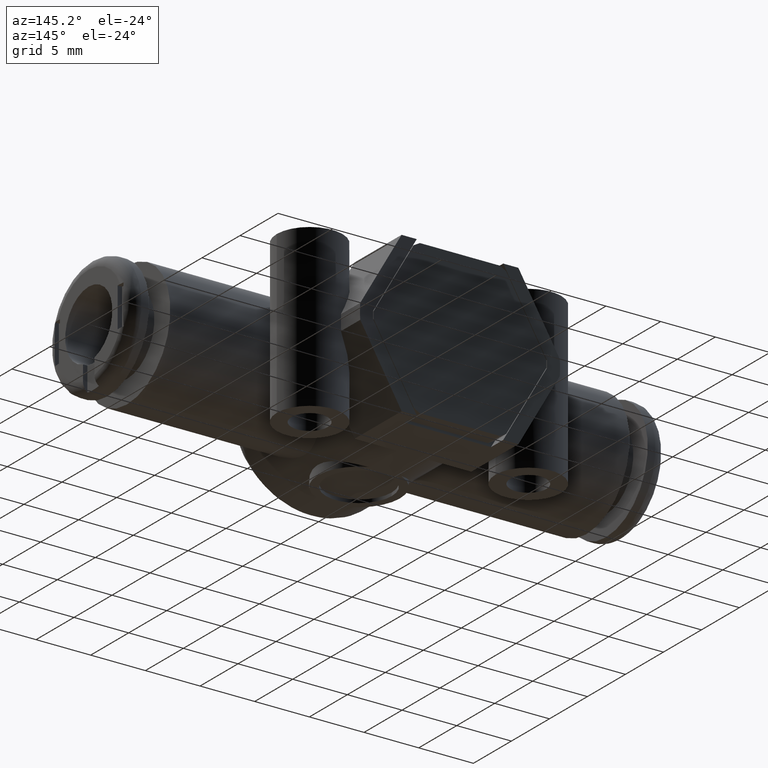
[diagram: clean part render]
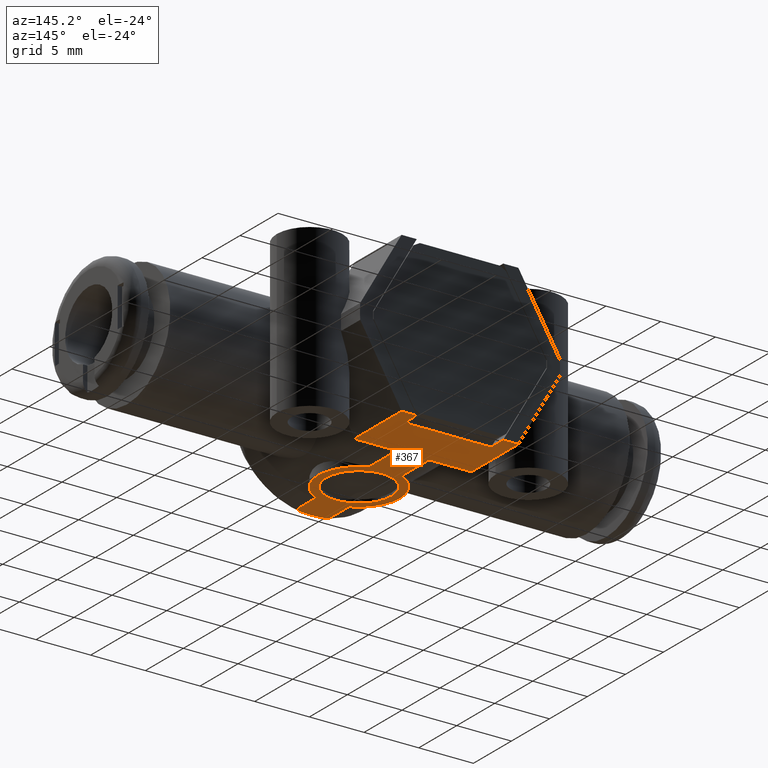
[diagram: same view with one face highlighted and labeled with its STEP entity id]
A machine part, auxiliary view. The second image highlights one B-rep face of the part: STEP entity #367.
In plain terms, the highlighted planar face has unit normal (0, 0, 1).
Its self-contained STEP definition (entity closure, byte-faithful):
#367 = ADVANCED_FACE( '', ( #762, #763 ), #764, .F. );
#762 = FACE_OUTER_BOUND( '', #1188, .T. );
#763 = FACE_BOUND( '', #1189, .T. );
#764 = PLANE( '', #1190 );
#1188 = EDGE_LOOP( '', ( #1958, #1959, #1960, #1961, #1962, #1963, #1964, #1965, #1966, #1967, #1968, #1969, #1970, #1971, #1972, #1973 ) );
#1189 = EDGE_LOOP( '', ( #1974 ) );
#1190 = AXIS2_PLACEMENT_3D( '', #1975, #1976, #1977 );
#1958 = ORIENTED_EDGE( '', *, *, #2459, .F. );
#1959 = ORIENTED_EDGE( '', *, *, #2588, .T. );
#1960 = ORIENTED_EDGE( '', *, *, #2336, .F. );
#1961 = ORIENTED_EDGE( '', *, *, #2444, .T. );
#1962 = ORIENTED_EDGE( '', *, *, #2589, .F. );
#1963 = ORIENTED_EDGE( '', *, *, #2366, .T. );
#1964 = ORIENTED_EDGE( '', *, *, #2420, .T. );
#1965 = ORIENTED_EDGE( '', *, *, #2526, .F. );
#1966 = ORIENTED_EDGE( '', *, *, #2590, .F. );
#1967 = ORIENTED_EDGE( '', *, *, #2524, .F. );
#1968 = ORIENTED_EDGE( '', *, *, #2591, .T. );
#1969 = ORIENTED_EDGE( '', *, *, #2592, .F. );
#1970 = ORIENTED_EDGE( '', *, *, #2475, .F. );
#1971 = ORIENTED_EDGE( '', *, *, #2593, .F. );
#1972 = ORIENTED_EDGE( '', *, *, #2594, .T. );
#1973 = ORIENTED_EDGE( '', *, *, #2595, .F. );
#1974 = ORIENTED_EDGE( '', *, *, #2510, .F. );
#1975 = CARTESIAN_POINT( '', ( 10.0000000000000, 10.0000000000000, -7.25000000000000 ) );
#1976 = DIRECTION( '', ( 0.000000000000000, -0.000000000000000, 1.00000000000000 ) );
#1977 = DIRECTION( '', ( 1.00000000000000, 0.000000000000000, -0.000000000000000 ) );
#2336 = EDGE_CURVE( '', #2734, #2736, #2737, .T. );
#2366 = EDGE_CURVE( '', #2789, #2787, #2790, .T. );
#2420 = EDGE_CURVE( '', #2787, #2873, #2875, .T. );
#2444 = EDGE_CURVE( '', #2734, #2909, #2911, .T. );
#2459 = EDGE_CURVE( '', #2929, #2931, #2932, .T. );
#2475 = EDGE_CURVE( '', #2956, #2957, #2959, .T. );
#2510 = EDGE_CURVE( '', #3012, #3012, #3013, .T. );
#2524 = EDGE_CURVE( '', #3031, #3033, #3034, .F. );
#2526 = EDGE_CURVE( '', #3035, #2873, #3037, .F. );
#2588 = EDGE_CURVE( '', #2929, #2736, #3124, .T. );
#2589 = EDGE_CURVE( '', #2789, #2909, #3125, .T. );
#2590 = EDGE_CURVE( '', #3033, #3035, #3126, .T. );
#2591 = EDGE_CURVE( '', #3031, #3127, #3128, .T. );
#2592 = EDGE_CURVE( '', #2957, #3127, #3129, .T. );
#2593 = EDGE_CURVE( '', #3130, #2956, #3131, .T. );
#2594 = EDGE_CURVE( '', #3130, #3132, #3133, .T. );
#2595 = EDGE_CURVE( '', #2931, #3132, #3134, .T. );
#2734 = VERTEX_POINT( '', #3361 );
#2736 = VERTEX_POINT( '', #3364 );
#2737 = LINE( '', #3365, #3366 );
#2787 = VERTEX_POINT( '', #3446 );
#2789 = VERTEX_POINT( '', #3449 );
#2790 = LINE( '', #3450, #3451 );
#2873 = VERTEX_POINT( '', #3683 );
#2875 = LINE( '', #3685, #3686 );
#2909 = VERTEX_POINT( '', #3735 );
#2911 = LINE( '', #3738, #3739 );
#2929 = VERTEX_POINT( '', #3762 );
#2931 = VERTEX_POINT( '', #3765 );
#2932 = LINE( '', #3766, #3767 );
#2956 = VERTEX_POINT( '', #3796 );
#2957 = VERTEX_POINT( '', #3797 );
#2959 = CIRCLE( '', #3828, 3.75000000000000 );
#3012 = VERTEX_POINT( '', #3920 );
#3013 = CIRCLE( '', #3921, 3.00000000000000 );
#3031 = VERTEX_POINT( '', #3960 );
#3033 = VERTEX_POINT( '', #3962 );
#3034 = LINE( '', #3963, #3964 );
#3035 = VERTEX_POINT( '', #3965 );
#3037 = LINE( '', #3996, #3997 );
#3124 = LINE( '', #4266, #4267 );
#3125 = LINE( '', #4268, #4269 );
#3126 = CIRCLE( '', #4270, 3.75000000000000 );
#3127 = VERTEX_POINT( '', #4271 );
#3128 = B_SPLINE_CURVE_WITH_KNOTS( '', 3, ( #4272, #4273, #4274, #4275, #4276, #4277, #4278, #4279, #4280, #4281, #4282, #4283, #4284, #4285, #4286, #4287, #4288, #4289, #4290, #4291, #4292, #4293 ), .UNSPECIFIED., .F., .F., ( 4, 2, 2, 2, 2, 2, 2, 2, 2, 2, 4 ), ( 0.00490648752821868, 0.00500864722414392, 0.00511080692006917, 0.00531512631191966, 0.00572376509562063, 0.00654104266302258, 0.00735832023042453, 0.00776695901412550, 0.00797127840597599, 0.00807343810190123, 0.00817559779782648 ), .UNSPECIFIED. );
#3129 = LINE( '', #4294, #4295 );
#3130 = VERTEX_POINT( '', #4296 );
#3131 = LINE( '', #4297, #4298 );
#3132 = VERTEX_POINT( '', #4299 );
#3133 = LINE( '', #4300, #4301 );
#3134 = LINE( '', #4302, #4303 );
#3361 = CARTESIAN_POINT( '', ( 3.95484934394894, 12.0000000000000, -7.25000000000000 ) );
#3364 = CARTESIAN_POINT( '', ( -3.95484934394894, 12.0000000000000, -7.25000000000000 ) );
#3365 = CARTESIAN_POINT( '', ( 10.0000000000000, 12.0000000000000, -7.25000000000000 ) );
#3366 = VECTOR( '', #4488, 1000.00000000000 );
#3446 = CARTESIAN_POINT( '', ( 5.34048999000404, 7.40000000000000, -7.25000000000000 ) );
#3449 = CARTESIAN_POINT( '', ( 5.34048999000404, 13.6000000000000, -7.25000000000000 ) );
#3450 = CARTESIAN_POINT( '', ( 5.34048999000404, 13.6000000000000, -7.25000000000000 ) );
#3451 = VECTOR( '', #4518, 1000.00000000000 );
#3683 = CARTESIAN_POINT( '', ( 1.48239670803736, 7.40000000000000, -7.25000000000000 ) );
#3685 = CARTESIAN_POINT( '', ( 5.34048999000404, 7.40000000000000, -7.25000000000000 ) );
#3686 = VECTOR( '', #4588, 1000.00000000000 );
#3735 = CARTESIAN_POINT( '', ( 3.95484934394894, 13.6000000000000, -7.25000000000000 ) );
#3738 = CARTESIAN_POINT( '', ( 3.95484934394894, 10.0000000000000, -7.25000000000000 ) );
#3739 = VECTOR( '', #4617, 1000.00000000000 );
#3762 = CARTESIAN_POINT( '', ( -3.95484934394894, 13.6000000000000, -7.25000000000000 ) );
#3765 = CARTESIAN_POINT( '', ( -5.34048999000404, 13.6000000000000, -7.25000000000000 ) );
#3766 = CARTESIAN_POINT( '', ( 5.34048999000404, 13.6000000000000, -7.25000000000000 ) );
#3767 = VECTOR( '', #4633, 1000.00000000000 );
#3796 = CARTESIAN_POINT( '', ( -1.48239670803736, 3.74456092992997, -7.25000000000000 ) );
#3797 = CARTESIAN_POINT( '', ( -1.48239670803736, -3.14456092992997, -7.25000000000000 ) );
#3828 = AXIS2_PLACEMENT_3D( '', #4657, #4658, #4659 );
#3920 = CARTESIAN_POINT( '', ( -3.00000000000000, 0.300000000000000, -7.25000000000000 ) );
#3921 = AXIS2_PLACEMENT_3D( '', #4699, #4700, #4701 );
#3960 = CARTESIAN_POINT( '', ( 1.48239670803736, -5.60000000000000, -7.25000000000000 ) );
#3962 = CARTESIAN_POINT( '', ( 1.48239670803736, -3.14456092992997, -7.25000000000000 ) );
#3963 = CARTESIAN_POINT( '', ( 1.48239670803736, -6.40000000000000, -7.25000000000000 ) );
#3964 = VECTOR( '', #4721, 1000.00000000000 );
#3965 = CARTESIAN_POINT( '', ( 1.48239670803736, 3.74456092992997, -7.25000000000000 ) );
#3996 = CARTESIAN_POINT( '', ( 1.48239670803736, -6.40000000000000, -7.25000000000000 ) );
#3997 = VECTOR( '', #4722, 1000.00000000000 );
#4266 = CARTESIAN_POINT( '', ( -3.95484934394894, 10.0000000000000, -7.25000000000000 ) );
#4267 = VECTOR( '', #4789, 1000.00000000000 );
#4268 = CARTESIAN_POINT( '', ( 5.34048999000404, 13.6000000000000, -7.25000000000000 ) );
#4269 = VECTOR( '', #4790, 1000.00000000000 );
#4270 = AXIS2_PLACEMENT_3D( '', #4791, #4792, #4793 );
#4271 = CARTESIAN_POINT( '', ( -1.48239670803820, -5.59999999999913, -7.25000000000000 ) );
#4272 = CARTESIAN_POINT( '', ( 1.48239670803736, -5.60000000000000, -7.25000000000000 ) );
#4273 = CARTESIAN_POINT( '', ( 1.48239670803736, -5.63506337660026, -7.25000000000000 ) );
#4274 = CARTESIAN_POINT( '', ( 1.47027603245568, -5.66906870213890, -7.25000000000000 ) );
#4275 = CARTESIAN_POINT( '', ( 1.43330890073257, -5.72765546155907, -7.25000000000000 ) );
#4276 = CARTESIAN_POINT( '', ( 1.40877017899388, -5.75301711634730, -7.25000000000000 ) );
#4277 = CARTESIAN_POINT( '', ( 1.32923380975159, -5.81940468671764, -7.25000000000000 ) );
#4278 = CARTESIAN_POINT( '', ( 1.26755321989231, -5.85238688583443, -7.25000000000000 ) );
#4279 = CARTESIAN_POINT( '', ( 1.07954449933321, -5.93491601604011, -7.25000000000000 ) );
#4280 = CARTESIAN_POINT( '', ( 0.944843686920877, -5.96967813434601, -7.25000000000000 ) );
#4281 = CARTESIAN_POINT( '', ( 0.543553032622488, -6.04804541337685, -7.25000000000000 ) );
#4282 = CARTESIAN_POINT( '', ( 0.271103320405361, -6.06647079571374, -7.25000000000000 ) );
#4283 = CARTESIAN_POINT( '', ( -0.274997568098068, -6.06626638075360, -7.25000000000000 ) );
#4284 = CARTESIAN_POINT( '', ( -0.548892653988950, -6.04742479260557, -7.25000000000000 ) );
#4285 = CARTESIAN_POINT( '', ( -0.948704010202147, -5.96870798045429, -7.25000000000000 ) );
#4286 = CARTESIAN_POINT( '', ( -1.07969895964381, -5.93479611709962, -7.25000000000000 ) );
#4287 = CARTESIAN_POINT( '', ( -1.26692663456722, -5.85268786814225, -7.25000000000000 ) );
#4288 = CARTESIAN_POINT( '', ( -1.32896485085505, -5.81967719155215, -7.25000000000000 ) );
#4289 = CARTESIAN_POINT( '', ( -1.40918761413647, -5.75264455875608, -7.25000000000000 ) );
#4290 = CARTESIAN_POINT( '', ( -1.43332101967261, -5.72770687216940, -7.25000000000000 ) );
#4291 = CARTESIAN_POINT( '', ( -1.47054530852926, -5.66857079190518, -7.25000000000000 ) );
#4292 = CARTESIAN_POINT( '', ( -1.48239670803808, -5.63460953053423, -7.25000000000000 ) );
#4293 = CARTESIAN_POINT( '', ( -1.48239670803789, -5.59999999999910, -7.25000000000000 ) );
#4294 = CARTESIAN_POINT( '', ( -1.48239670803736, -6.40000000000000, -7.25000000000000 ) );
#4295 = VECTOR( '', #4794, 1000.00000000000 );
#4296 = CARTESIAN_POINT( '', ( -1.48239670803736, 7.40000000000000, -7.25000000000000 ) );
#4297 = CARTESIAN_POINT( '', ( -1.48239670803736, -6.40000000000000, -7.25000000000000 ) );
#4298 = VECTOR( '', #4795, 1000.00000000000 );
#4299 = CARTESIAN_POINT( '', ( -5.34048999000404, 7.40000000000000, -7.25000000000000 ) );
#4300 = CARTESIAN_POINT( '', ( 5.34048999000404, 7.40000000000000, -7.25000000000000 ) );
#4301 = VECTOR( '', #4796, 1000.00000000000 );
#4302 = CARTESIAN_POINT( '', ( -5.34048999000404, 13.6000000000000, -7.25000000000000 ) );
#4303 = VECTOR( '', #4797, 1000.00000000000 );
#4488 = DIRECTION( '', ( -1.00000000000000, 0.000000000000000, 0.000000000000000 ) );
#4518 = DIRECTION( '', ( -0.000000000000000, -1.00000000000000, -0.000000000000000 ) );
#4588 = DIRECTION( '', ( -1.00000000000000, 0.000000000000000, 0.000000000000000 ) );
#4617 = DIRECTION( '', ( 0.000000000000000, 1.00000000000000, 0.000000000000000 ) );
#4633 = DIRECTION( '', ( -1.00000000000000, 0.000000000000000, 0.000000000000000 ) );
#4657 = CARTESIAN_POINT( '', ( 0.000000000000000, 0.300000000000000, -7.25000000000000 ) );
#4658 = DIRECTION( '', ( 0.000000000000000, 0.000000000000000, 1.00000000000000 ) );
#4659 = DIRECTION( '', ( 1.00000000000000, 0.000000000000000, 0.000000000000000 ) );
#4699 = CARTESIAN_POINT( '', ( 0.000000000000000, 0.300000000000000, -7.25000000000000 ) );
#4700 = DIRECTION( '', ( 0.000000000000000, 0.000000000000000, -1.00000000000000 ) );
#4701 = DIRECTION( '', ( -1.00000000000000, 0.000000000000000, 0.000000000000000 ) );
#4721 = DIRECTION( '', ( -0.000000000000000, -1.00000000000000, -0.000000000000000 ) );
#4722 = DIRECTION( '', ( -0.000000000000000, -1.00000000000000, -0.000000000000000 ) );
#4789 = DIRECTION( '', ( 0.000000000000000, -1.00000000000000, 0.000000000000000 ) );
#4790 = DIRECTION( '', ( -1.00000000000000, 0.000000000000000, 0.000000000000000 ) );
#4791 = CARTESIAN_POINT( '', ( 0.000000000000000, 0.300000000000000, -7.25000000000000 ) );
#4792 = DIRECTION( '', ( 0.000000000000000, 0.000000000000000, 1.00000000000000 ) );
#4793 = DIRECTION( '', ( 1.00000000000000, 0.000000000000000, 0.000000000000000 ) );
#4794 = DIRECTION( '', ( -0.000000000000000, -1.00000000000000, -0.000000000000000 ) );
#4795 = DIRECTION( '', ( -0.000000000000000, -1.00000000000000, -0.000000000000000 ) );
#4796 = DIRECTION( '', ( -1.00000000000000, 0.000000000000000, 0.000000000000000 ) );
#4797 = DIRECTION( '', ( -0.000000000000000, -1.00000000000000, -0.000000000000000 ) );